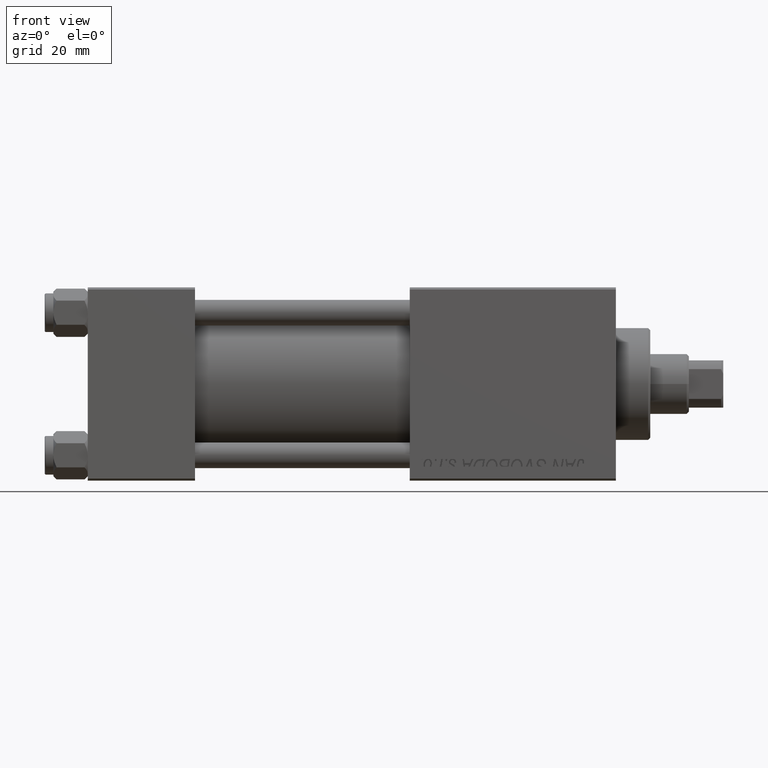
[diagram: clean part render]
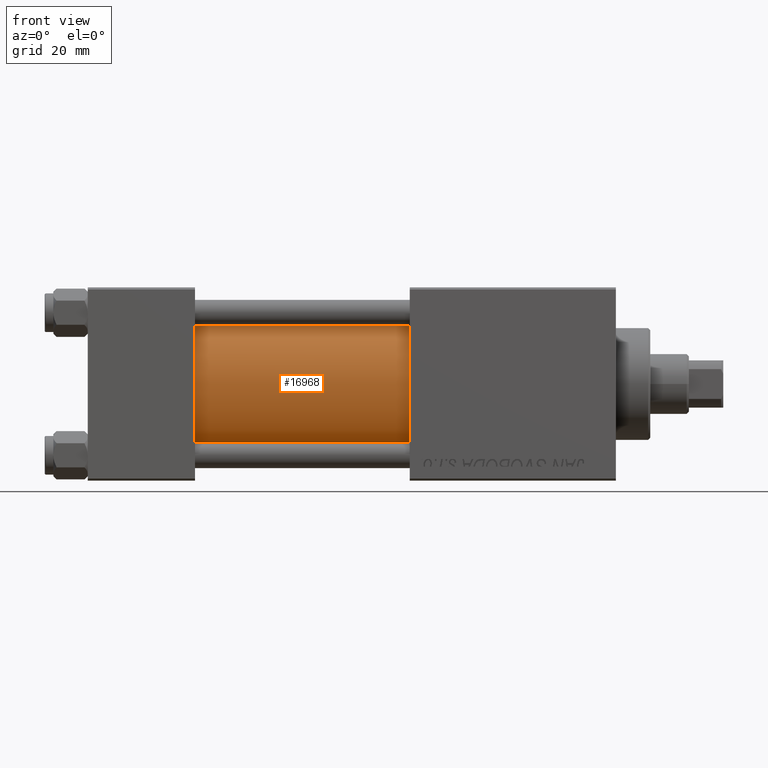
[diagram: same view with one face highlighted and labeled with its STEP entity id]
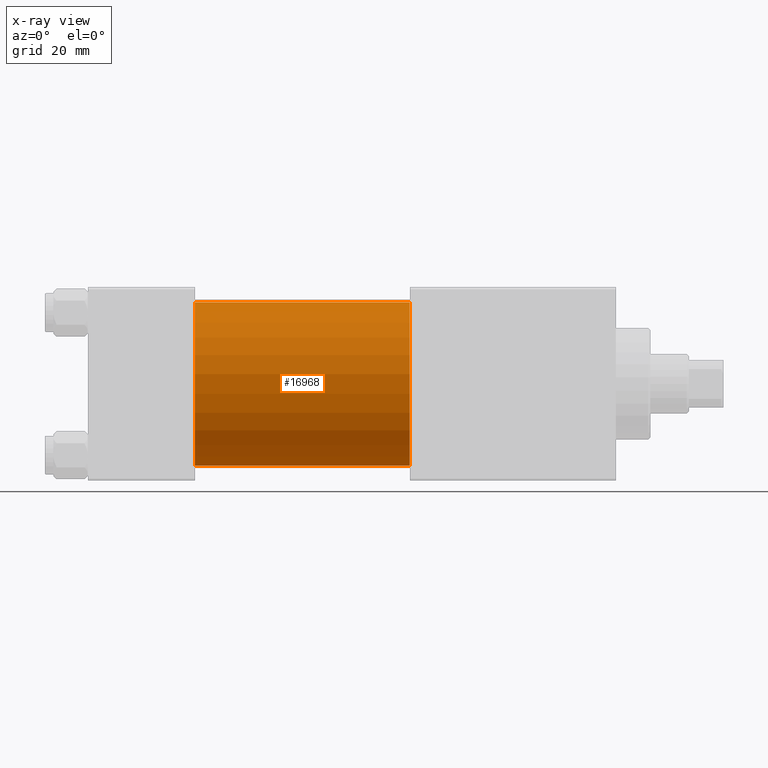
[diagram: x-ray of the same camera — body ghosted, the highlighted face saturated]
A machine part, front view. The second image highlights one B-rep face of the part: STEP entity #16968.
The next image is the same camera in x-ray: the body ghosted, the highlighted face saturated — about 0% of this face is hidden behind the body in this view.
In plain terms, the highlighted cylindrical surface (partial cylindrical patch) has radius 19 mm, axis along (-1, -0, -0).
Its self-contained STEP definition (entity closure, byte-faithful):
#581 = DIRECTION ( 'NONE',  ( 0.000000000000000000, 0.000000000000000000, -1.000000000000000000 ) ) ;
#4860 = EDGE_CURVE ( 'NONE', #39119, #15991, #21178, .T. ) ;
#4971 = AXIS2_PLACEMENT_3D ( 'NONE', #21311, #40821, #21555 ) ;
#5643 = DIRECTION ( 'NONE',  ( -1.000000000000000000, -0.000000000000000000, -0.000000000000000000 ) ) ;
#9032 = CARTESIAN_POINT ( 'NONE',  ( 25.00000000000000000, -2.602085213965210642E-15, 0.000000000000000000 ) ) ;
#9701 = LINE ( 'NONE', #49014, #49285 ) ;
#10865 = CARTESIAN_POINT ( 'NONE',  ( 75.00000000000001421, -2.752562955852396712E-16, -19.00000000000000000 ) ) ;
#14047 = CARTESIAN_POINT ( 'NONE',  ( 25.00000000000000000, -2.602085213965210642E-15, 19.00000000000000000 ) ) ;
#14513 = ORIENTED_EDGE ( 'NONE', *, *, #34069, .T. ) ;
#15991 = VERTEX_POINT ( 'NONE', #14047 ) ;
#16134 = ORIENTED_EDGE ( 'NONE', *, *, #30379, .F. ) ;
#16968 = ADVANCED_FACE ( 'NONE', ( #18253 ), #22064, .T. ) ;
#18253 = FACE_OUTER_BOUND ( 'NONE', #42030, .T. ) ;
#18833 = VERTEX_POINT ( 'NONE', #36228 ) ;
#20179 = ORIENTED_EDGE ( 'NONE', *, *, #4860, .T. ) ;
#21178 = LINE ( 'NONE', #23537, #37154 ) ;
#21311 = CARTESIAN_POINT ( 'NONE',  ( 75.00000000000001421, -2.602085213965210642E-15, 0.000000000000000000 ) ) ;
#21555 = DIRECTION ( 'NONE',  ( 0.000000000000000000, 0.000000000000000000, 1.000000000000000000 ) ) ;
#22064 = CYLINDRICAL_SURFACE ( 'NONE', #4971, 19.00000000000000000 ) ;
#23537 = CARTESIAN_POINT ( 'NONE',  ( 75.00000000000001421, -2.602085213965210642E-15, 19.00000000000000000 ) ) ;
#24538 = DIRECTION ( 'NONE',  ( 0.000000000000000000, 0.000000000000000000, 1.000000000000000000 ) ) ;
#25951 = CIRCLE ( 'NONE', #27575, 19.00000000000000000 ) ;
#27575 = AXIS2_PLACEMENT_3D ( 'NONE', #39919, #28260, #581 ) ;
#28260 = DIRECTION ( 'NONE',  ( 1.000000000000000000, 0.000000000000000000, 0.000000000000000000 ) ) ;
#28304 = CARTESIAN_POINT ( 'NONE',  ( 75.00000000000001421, -2.602085213965210642E-15, 19.00000000000000000 ) ) ;
#30379 = EDGE_CURVE ( 'NONE', #36043, #18833, #9701, .T. ) ;
#33492 = EDGE_CURVE ( 'NONE', #39119, #36043, #25951, .T. ) ;
#34069 = EDGE_CURVE ( 'NONE', #15991, #18833, #49394, .T. ) ;
#36043 = VERTEX_POINT ( 'NONE', #10865 ) ;
#36228 = CARTESIAN_POINT ( 'NONE',  ( 25.00000000000000000, -2.752562955852396712E-16, -19.00000000000000000 ) ) ;
#36692 = DIRECTION ( 'NONE',  ( 1.000000000000000000, -0.000000000000000000, 0.000000000000000000 ) ) ;
#37154 = VECTOR ( 'NONE', #50159, 1000.000000000000000 ) ;
#39119 = VERTEX_POINT ( 'NONE', #28304 ) ;
#39919 = CARTESIAN_POINT ( 'NONE',  ( 75.00000000000001421, -2.602085213965210642E-15, 0.000000000000000000 ) ) ;
#40821 = DIRECTION ( 'NONE',  ( -1.000000000000000000, -0.000000000000000000, -0.000000000000000000 ) ) ;
#42030 = EDGE_LOOP ( 'NONE', ( #16134, #48966, #20179, #14513 ) ) ;
#47805 = AXIS2_PLACEMENT_3D ( 'NONE', #9032, #36692, #24538 ) ;
#48966 = ORIENTED_EDGE ( 'NONE', *, *, #33492, .F. ) ;
#49014 = CARTESIAN_POINT ( 'NONE',  ( 75.00000000000001421, -2.752562955852396712E-16, -19.00000000000000000 ) ) ;
#49285 = VECTOR ( 'NONE', #5643, 1000.000000000000000 ) ;
#49394 = CIRCLE ( 'NONE', #47805, 19.00000000000000000 ) ;
#50159 = DIRECTION ( 'NONE',  ( -1.000000000000000000, -0.000000000000000000, -0.000000000000000000 ) ) ;